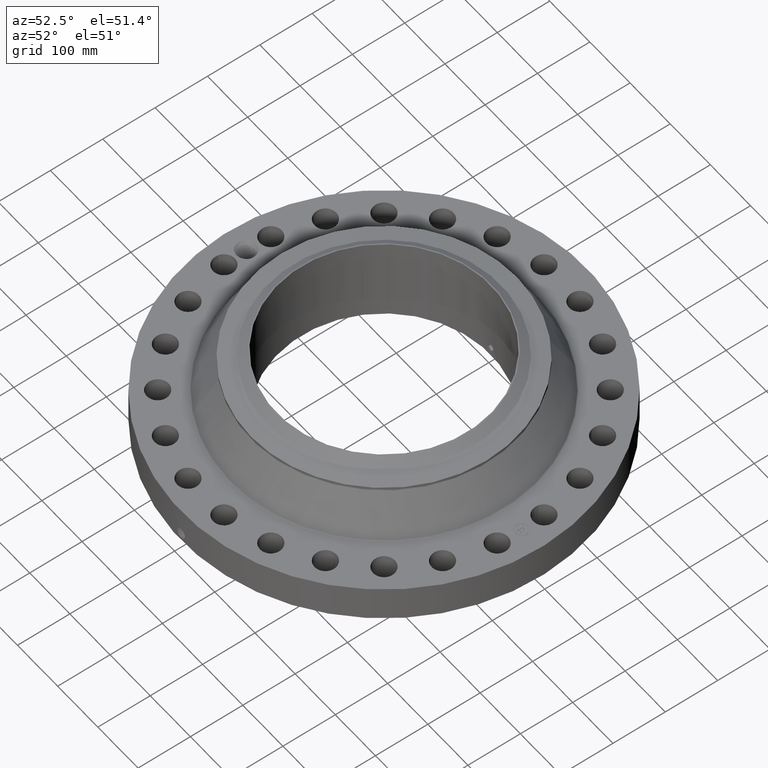
[diagram: clean part render]
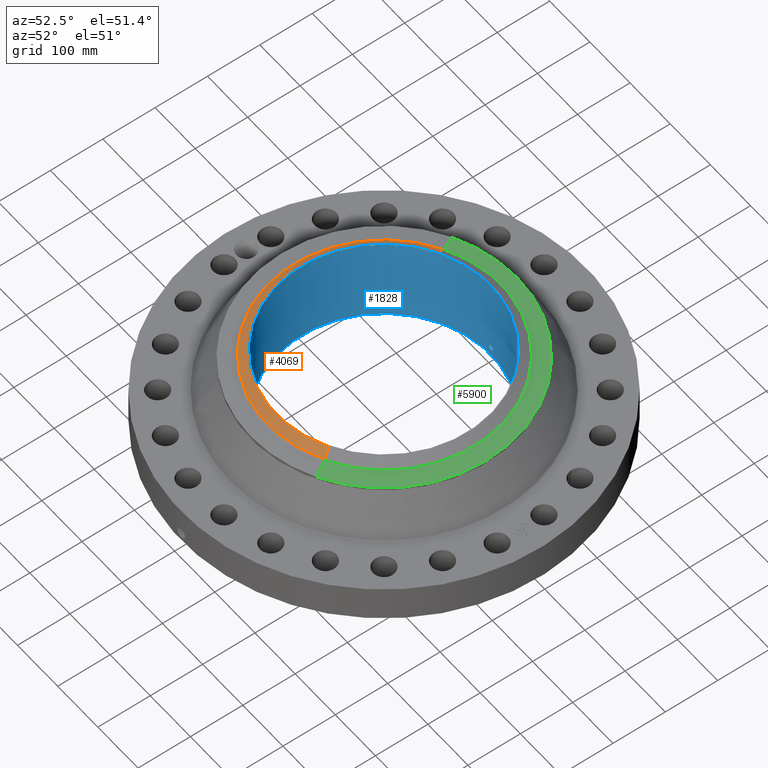
[diagram: same view with three faces highlighted in distinct colors, each labeled with its STEP entity id]
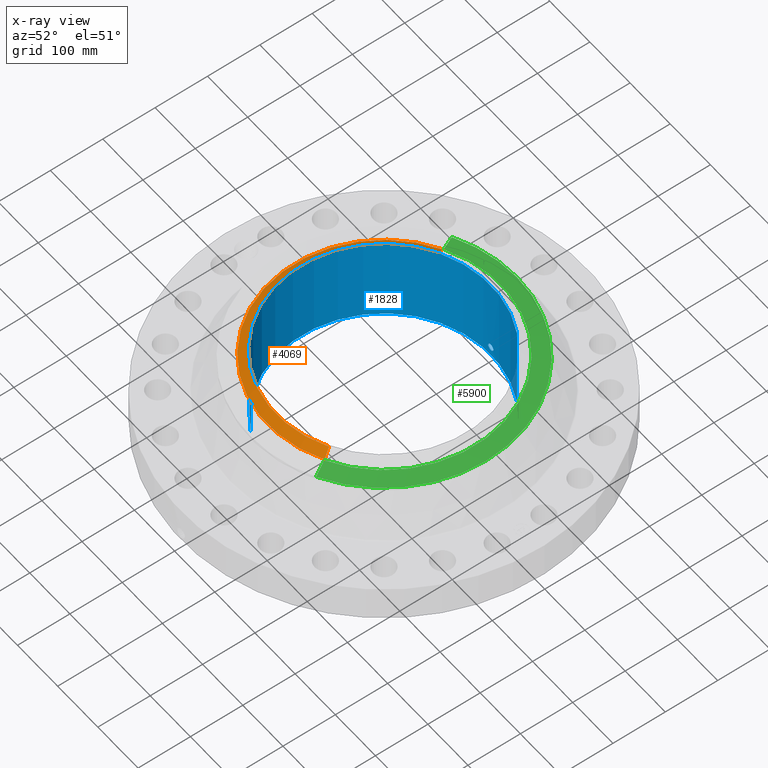
[diagram: x-ray of the same camera — body ghosted, the three highlighted faces saturated]
A machine part, auxiliary view with three faces highlighted in distinct colors.
The next image is the same camera in x-ray (body ghosted, the three faces saturated) — at least one of them is partly hidden behind the body in this view.
Their STEP definitions:

[orange] entity #4069 — the highlighted conical surface has half-angle 52.5 deg.
#3225=AXIS2_PLACEMENT_3D('Circle Axis2P3D',#3223,#3224,$) ;
#4042=AXIS2_PLACEMENT_3D('Cone Axis2P3D',#4039,#4040,#4041) ;
#4053=AXIS2_PLACEMENT_3D('Circle Axis2P3D',#4051,#4052,$) ;
#3218=CARTESIAN_POINT('Vertex',(3.88801654296,-7.11696654369,6.87000000003)) ;
#3220=CARTESIAN_POINT('Vertex',(-3.88801654296,7.11696654369,6.87000000003)) ;
#3223=CARTESIAN_POINT('Axis2P3D Location',(0.,0.,6.87000000003)) ;
#4039=CARTESIAN_POINT('Axis2P3D Location',(0.,0.,6.87000000003)) ;
#4044=CARTESIAN_POINT('Line Origine',(-4.04295784551,7.4005846956,6.62201437259)) ;
#4048=CARTESIAN_POINT('Vertex',(-4.19789914806,7.6842028475,6.37402874516)) ;
#4051=CARTESIAN_POINT('Axis2P3D Location',(0.,0.,6.37402874516)) ;
#4055=CARTESIAN_POINT('Vertex',(4.19789914806,-7.6842028475,6.37402874516)) ;
#4058=CARTESIAN_POINT('Line Origine',(4.04295784551,-7.4005846956,6.62201437259)) ;
#3224=DIRECTION('Axis2P3D Direction',(0.,0.,-0.0393700787402)) ;
#4040=DIRECTION('Axis2P3D Direction',(-0.,-0.,-0.0393700787402)) ;
#4041=DIRECTION('Axis2P3D XDirection',(-0.0188750212049,0.0345504945626,0.)) ;
#4045=DIRECTION('Vector Direction',(-0.014974561121,0.02741075027,-0.023966985394)) ;
#4052=DIRECTION('Axis2P3D Direction',(0.,0.,-0.0393700787402)) ;
#4059=DIRECTION('Vector Direction',(0.014974561121,-0.02741075027,-0.023966985394)) ;
#4046=VECTOR('Line Direction',#4045,0.0393700787402) ;
#4060=VECTOR('Line Direction',#4059,0.0393700787402) ;
#4064=ORIENTED_EDGE('',*,*,#3227,.F.) ;
#4065=ORIENTED_EDGE('',*,*,#4050,.T.) ;
#4066=ORIENTED_EDGE('',*,*,#4057,.T.) ;
#4067=ORIENTED_EDGE('',*,*,#4062,.F.) ;
#4069=ADVANCED_FACE('PartBody',(#4068),#4043,.T.) ;
#3226=CIRCLE('generated circle',#3225,8.10974015751) ;
#4054=CIRCLE('generated circle',#4053,8.75610248106) ;
#4043=CONICAL_SURFACE('Cone',#4042,8.10974015751,0.916297857297) ;
#3227=EDGE_CURVE('',#3221,#3219,#3226,.F.) ;
#4050=EDGE_CURVE('',#3221,#4049,#4047,.T.) ;
#4057=EDGE_CURVE('',#4049,#4056,#4054,.F.) ;
#4062=EDGE_CURVE('',#3219,#4056,#4061,.T.) ;
#4063=EDGE_LOOP('',(#4064,#4065,#4066,#4067)) ;
#4068=FACE_OUTER_BOUND('',#4063,.T.) ;
#4047=LINE('Line',#4044,#4046) ;
#4061=LINE('Line',#4058,#4060) ;
#3219=VERTEX_POINT('',#3218) ;
#3221=VERTEX_POINT('',#3220) ;
#4049=VERTEX_POINT('',#4048) ;
#4056=VERTEX_POINT('',#4055) ;

[blue] entity #1828 — the highlighted cylindrical surface (partial cylindrical patch) has radius 203.987 mm, axis along (0, 0, -1).
#262=AXIS2_PLACEMENT_3D('Circle Axis2P3D',#260,#261,$) ;
#1705=AXIS2_PLACEMENT_3D('Cylinder Axis2P3D',#1702,#1703,#1704) ;
#1777=AXIS2_PLACEMENT_3D('Circle Axis2P3D',#1775,#1776,$) ;
#255=CARTESIAN_POINT('Vertex',(3.85026650055,7.04786555457,0.250000000001)) ;
#257=CARTESIAN_POINT('Vertex',(-3.85026650055,-7.04786555457,0.250000000001)) ;
#260=CARTESIAN_POINT('Axis2P3D Location',(0.,0.,0.250000000001)) ;
#1702=CARTESIAN_POINT('Axis2P3D Location',(0.,0.,3.56000000001)) ;
#1711=CARTESIAN_POINT('Vertex',(3.85026650055,7.04786555457,6.87000000003)) ;
#1713=CARTESIAN_POINT('Vertex',(-3.85026650055,-7.04786555457,6.87000000003)) ;
#1716=CARTESIAN_POINT('Line Origine',(3.85026650055,7.04786555457,3.56000000001)) ;
#1721=CARTESIAN_POINT('Line Origine',(-3.85026650055,-7.04786555457,3.56000000001)) ;
#1775=CARTESIAN_POINT('Axis2P3D Location',(0.,0.,6.87000000003)) ;
#1787=CARTESIAN_POINT('Control Point',(0.219395640473,8.02800265031,1.05985638466)) ;
#1788=CARTESIAN_POINT('Control Point',(0.194443231353,8.02868456959,1.10553146318)) ;
#1789=CARTESIAN_POINT('Control Point',(0.157606155156,8.02959426464,1.1447104319)) ;
#1790=CARTESIAN_POINT('Control Point',(0.111110289631,8.03047894444,1.17324213296)) ;
#1791=CARTESIAN_POINT('Control Point',(0.0336761688152,8.0311828387,1.19588217449)) ;
#1792=CARTESIAN_POINT('Control Point',(-0.044668070607,8.03093962884,1.18805678429)) ;
#1793=CARTESIAN_POINT('Control Point',(-0.0702969801361,8.03075082117,1.18204470465)) ;
#1794=CARTESIAN_POINT('Control Point',(-0.1439520604,8.02991643995,1.15421459672)) ;
#1795=CARTESIAN_POINT('Control Point',(-0.203238942395,8.02855443048,1.09950342761)) ;
#1796=CARTESIAN_POINT('Control Point',(-0.232205394994,8.02766102467,1.05326675539)) ;
#1797=CARTESIAN_POINT('Control Point',(-0.255839783986,8.02692648241,0.975119048061)) ;
#1798=CARTESIAN_POINT('Control Point',(-0.248284067966,8.02716111598,0.895752013795)) ;
#1799=CARTESIAN_POINT('Control Point',(-0.242050260821,8.02735751363,0.869187462223)) ;
#1800=CARTESIAN_POINT('Control Point',(-0.23231626622,8.02764954518,0.843794662137)) ;
#1801=CARTESIAN_POINT('Control Point',(-0.219395640473,8.02800265031,0.820143615352)) ;
#1802=CARTESIAN_POINT('Vertex',(0.219395640473,8.02800265031,1.05985638466)) ;
#1804=CARTESIAN_POINT('Vertex',(-0.219395640473,8.02800265031,0.820143615352)) ;
#1808=CARTESIAN_POINT('Control Point',(-0.219395640473,8.02800265031,0.820143615352)) ;
#1809=CARTESIAN_POINT('Control Point',(-0.194443231327,8.02868456959,0.774468536782)) ;
#1810=CARTESIAN_POINT('Control Point',(-0.157606155079,8.02959426464,0.735289568028)) ;
#1811=CARTESIAN_POINT('Control Point',(-0.111110289732,8.03047894444,0.706757867074)) ;
#1812=CARTESIAN_POINT('Control Point',(-0.0336761688349,8.0311828387,0.684117825505)) ;
#1813=CARTESIAN_POINT('Control Point',(0.0446680706693,8.03093962884,0.691943215724)) ;
#1814=CARTESIAN_POINT('Control Point',(0.0702969800923,8.03075082117,0.69795529534)) ;
#1815=CARTESIAN_POINT('Control Point',(0.143952060396,8.02991643995,0.725785403273)) ;
#1816=CARTESIAN_POINT('Control Point',(0.203238942418,8.02855443048,0.780496572417)) ;
#1817=CARTESIAN_POINT('Control Point',(0.23220539499,8.02766102467,0.826733244606)) ;
#1818=CARTESIAN_POINT('Control Point',(0.255839783998,8.02692648241,0.904880951976)) ;
#1819=CARTESIAN_POINT('Control Point',(0.248284067959,8.02716111598,0.984247986288)) ;
#1820=CARTESIAN_POINT('Control Point',(0.242050260845,8.02735751363,1.01081253772)) ;
#1821=CARTESIAN_POINT('Control Point',(0.232316266236,8.02764954518,1.03620533784)) ;
#1822=CARTESIAN_POINT('Control Point',(0.219395640473,8.02800265031,1.05985638466)) ;
#261=DIRECTION('Axis2P3D Direction',(0.,0.,-0.0393700787402)) ;
#1703=DIRECTION('Axis2P3D Direction',(0.,0.,-0.0393700787402)) ;
#1704=DIRECTION('Axis2P3D XDirection',(-0.0188750212049,-0.0345504945626,0.)) ;
#1717=DIRECTION('Vector Direction',(0.,0.,-0.0393700787402)) ;
#1722=DIRECTION('Vector Direction',(0.,0.,-0.0393700787402)) ;
#1776=DIRECTION('Axis2P3D Direction',(0.,0.,-0.0393700787402)) ;
#1718=VECTOR('Line Direction',#1717,0.0393700787402) ;
#1723=VECTOR('Line Direction',#1722,0.0393700787402) ;
#1781=ORIENTED_EDGE('',*,*,#1779,.F.) ;
#1782=ORIENTED_EDGE('',*,*,#1725,.T.) ;
#1783=ORIENTED_EDGE('',*,*,#264,.T.) ;
#1784=ORIENTED_EDGE('',*,*,#1720,.F.) ;
#1825=ORIENTED_EDGE('',*,*,#1806,.F.) ;
#1826=ORIENTED_EDGE('',*,*,#1823,.F.) ;
#1827=FACE_BOUND('',#1824,.T.) ;
#1828=ADVANCED_FACE('PartBody',(#1785,#1827),#1706,.F.) ;
#1786=B_SPLINE_CURVE_WITH_KNOTS('',5,(#1787,#1788,#1789,#1790,#1791,#1792,#1793,#1794,#1795,#1796,#1797,#1798,#1799,#1800,#1801),.UNSPECIFIED.,.F.,.U.,(6,3,3,3,6),(0.,9.34861575783,14.0227898241,23.3728212057,28.2136349671),.UNSPECIFIED.) ;
#1807=B_SPLINE_CURVE_WITH_KNOTS('',5,(#1808,#1809,#1810,#1811,#1812,#1813,#1814,#1815,#1816,#1817,#1818,#1819,#1820,#1821,#1822),.UNSPECIFIED.,.F.,.U.,(6,3,3,3,6),(0.,9.3486157676,14.0227898388,23.3728212224,28.2136349899),.UNSPECIFIED.) ;
#263=CIRCLE('generated circle',#262,8.03100000003) ;
#1778=CIRCLE('generated circle',#1777,8.03100000003) ;
#1706=CYLINDRICAL_SURFACE('generated cylinder',#1705,8.03100000003) ;
#264=EDGE_CURVE('',#258,#256,#263,.T.) ;
#1720=EDGE_CURVE('',#1712,#256,#1719,.T.) ;
#1725=EDGE_CURVE('',#1714,#258,#1724,.T.) ;
#1779=EDGE_CURVE('',#1714,#1712,#1778,.T.) ;
#1806=EDGE_CURVE('',#1803,#1805,#1786,.T.) ;
#1823=EDGE_CURVE('',#1805,#1803,#1807,.T.) ;
#1780=EDGE_LOOP('',(#1781,#1782,#1783,#1784)) ;
#1824=EDGE_LOOP('',(#1825,#1826)) ;
#1785=FACE_OUTER_BOUND('',#1780,.T.) ;
#1719=LINE('Line',#1716,#1718) ;
#1724=LINE('Line',#1721,#1723) ;
#256=VERTEX_POINT('',#255) ;
#258=VERTEX_POINT('',#257) ;
#1712=VERTEX_POINT('',#1711) ;
#1714=VERTEX_POINT('',#1713) ;
#1803=VERTEX_POINT('',#1802) ;
#1805=VERTEX_POINT('',#1804) ;

[green] entity #5900 — the highlighted conical surface has half-angle 80 deg.
#4420=AXIS2_PLACEMENT_3D('Circle Axis2P3D',#4418,#4419,$) ;
#4447=AXIS2_PLACEMENT_3D('Circle Axis2P3D',#4445,#4446,$) ;
#5259=AXIS2_PLACEMENT_3D('Circle Axis2P3D',#5257,#5258,$) ;
#5881=AXIS2_PLACEMENT_3D('Cone Axis2P3D',#5878,#5879,#5880) ;
#4415=CARTESIAN_POINT('Vertex',(4.79425538606,8.77582561894,6.14114500327)) ;
#4418=CARTESIAN_POINT('Axis2P3D Location',(0.,0.,6.14114500327)) ;
#4422=CARTESIAN_POINT('Vertex',(4.79425538606,-8.77582561894,6.14114500327)) ;
#4442=CARTESIAN_POINT('Vertex',(-4.79425538606,8.77582561894,6.14114500327)) ;
#4445=CARTESIAN_POINT('Axis2P3D Location',(0.,0.,6.14114500327)) ;
#5235=CARTESIAN_POINT('Vertex',(-4.22253746359,7.72930298158,6.35141601924)) ;
#5242=CARTESIAN_POINT('Vertex',(4.22253746359,-7.72930298158,6.35141601924)) ;
#5257=CARTESIAN_POINT('Axis2P3D Location',(0.,0.,6.35141601924)) ;
#5878=CARTESIAN_POINT('Axis2P3D Location',(0.,0.,6.35141601924)) ;
#5883=CARTESIAN_POINT('Line Origine',(-4.50839642483,8.25256430026,6.24628051126)) ;
#5888=CARTESIAN_POINT('Line Origine',(4.50839642483,-8.25256430026,6.24628051126)) ;
#4419=DIRECTION('Axis2P3D Direction',(0.,0.,-0.0393700787402)) ;
#4446=DIRECTION('Axis2P3D Direction',(0.,0.,-0.0393700787402)) ;
#5258=DIRECTION('Axis2P3D Direction',(0.,0.,0.0393700787402)) ;
#5879=DIRECTION('Axis2P3D Direction',(-0.,-0.,-0.0393700787402)) ;
#5880=DIRECTION('Axis2P3D XDirection',(0.0188750212049,-0.0345504945626,0.)) ;
#5884=DIRECTION('Vector Direction',(-0.0185882672208,0.0340255949157,-0.00683654242783)) ;
#5889=DIRECTION('Vector Direction',(0.0185882672208,-0.0340255949157,-0.00683654242783)) ;
#5885=VECTOR('Line Direction',#5884,0.0393700787402) ;
#5890=VECTOR('Line Direction',#5889,0.0393700787402) ;
#5894=ORIENTED_EDGE('',*,*,#5887,.F.) ;
#5895=ORIENTED_EDGE('',*,*,#5261,.F.) ;
#5896=ORIENTED_EDGE('',*,*,#5892,.T.) ;
#5897=ORIENTED_EDGE('',*,*,#4424,.T.) ;
#5898=ORIENTED_EDGE('',*,*,#4449,.F.) ;
#5900=ADVANCED_FACE('PartBody',(#5899),#5882,.T.) ;
#4421=CIRCLE('generated circle',#4420,10.) ;
#4448=CIRCLE('generated circle',#4447,10.) ;
#5260=CIRCLE('generated circle',#5259,8.80749380996) ;
#5882=CONICAL_SURFACE('Cone',#5881,8.80749380996,1.3962634016) ;
#4424=EDGE_CURVE('',#4423,#4416,#4421,.F.) ;
#4449=EDGE_CURVE('',#4443,#4416,#4448,.T.) ;
#5261=EDGE_CURVE('',#5243,#5236,#5260,.T.) ;
#5887=EDGE_CURVE('',#5236,#4443,#5886,.T.) ;
#5892=EDGE_CURVE('',#5243,#4423,#5891,.T.) ;
#5893=EDGE_LOOP('',(#5894,#5895,#5896,#5897,#5898)) ;
#5899=FACE_OUTER_BOUND('',#5893,.T.) ;
#5886=LINE('Line',#5883,#5885) ;
#5891=LINE('Line',#5888,#5890) ;
#4416=VERTEX_POINT('',#4415) ;
#4423=VERTEX_POINT('',#4422) ;
#4443=VERTEX_POINT('',#4442) ;
#5236=VERTEX_POINT('',#5235) ;
#5243=VERTEX_POINT('',#5242) ;